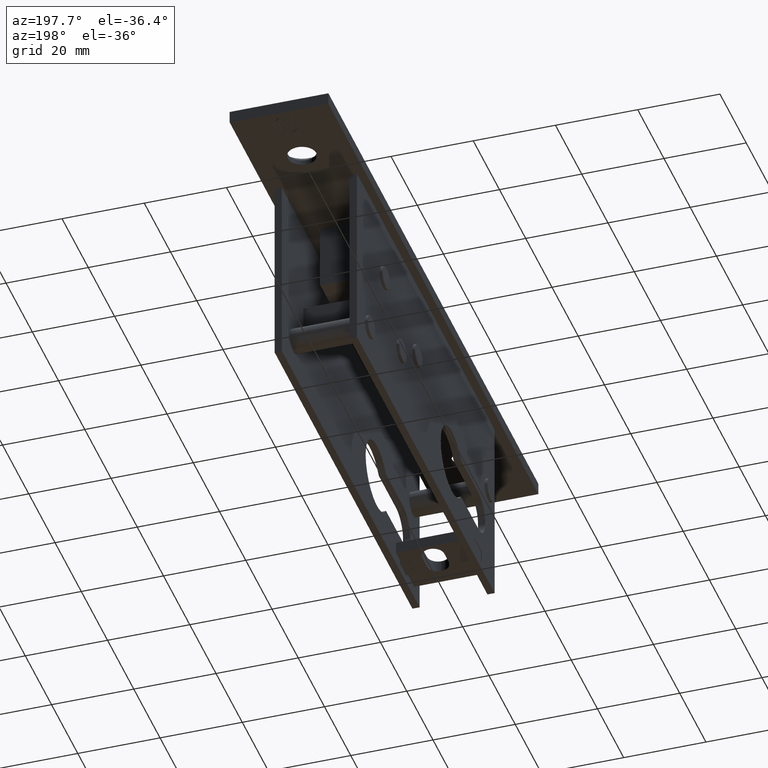
[diagram: clean part render]
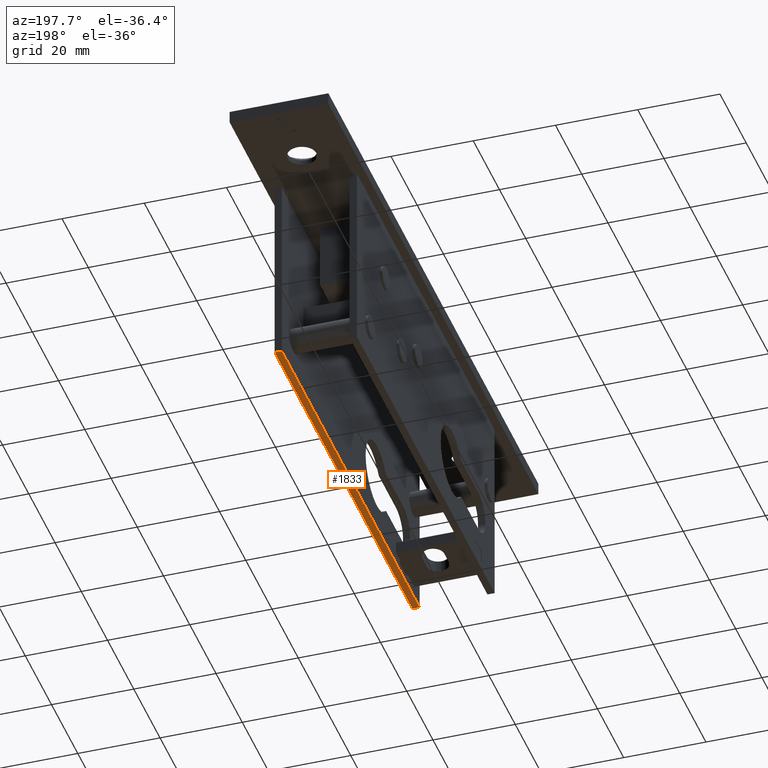
[diagram: same view with one face highlighted and labeled with its STEP entity id]
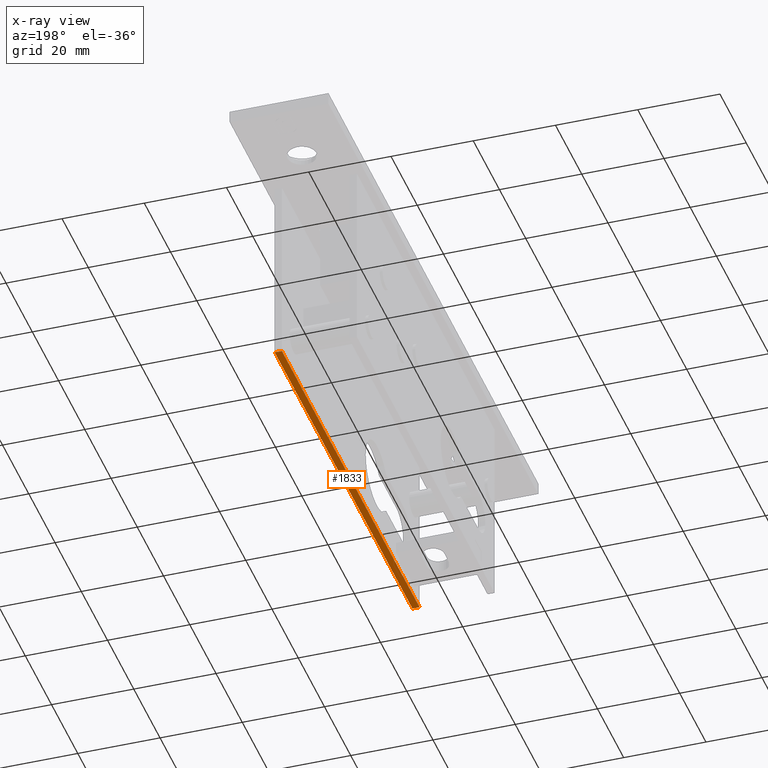
[diagram: x-ray of the same camera — body ghosted, the highlighted face saturated]
A machine part, auxiliary view. The second image highlights one B-rep face of the part: STEP entity #1833.
The next image is the same camera in x-ray: the body ghosted, the highlighted face saturated — about 0% of this face is hidden behind the body in this view.
In plain terms, the highlighted planar face has unit normal (0, 0, 1).
Its self-contained STEP definition (entity closure, byte-faithful):
#289 = DIRECTION ( 'NONE',  ( 1.000000000000000000, 0.000000000000000000, 0.000000000000000000 ) ) ;
#976 = VECTOR ( 'NONE', #6719, 1000.000000000000000 ) ;
#1080 = DIRECTION ( 'NONE',  ( -1.000000000000000000, -0.000000000000000000, -0.000000000000000000 ) ) ;
#1384 = EDGE_LOOP ( 'NONE', ( #5247, #5227, #15013, #11022 ) ) ;
#1833 = ADVANCED_FACE ( 'NONE', ( #4316 ), #15178, .F. ) ;
#2633 = CARTESIAN_POINT ( 'NONE',  ( 8.250000000000007105, 51.99999999999999289, -47.00000000000000000 ) ) ;
#2903 = EDGE_CURVE ( 'NONE', #12475, #9041, #13233, .T. ) ;
#2931 = DIRECTION ( 'NONE',  ( 0.000000000000000000, 0.000000000000000000, 1.000000000000000000 ) ) ;
#3255 = EDGE_CURVE ( 'NONE', #9041, #8431, #15989, .T. ) ;
#3765 = CARTESIAN_POINT ( 'NONE',  ( 9.999999999999994671, -53.00000000000000711, -47.00000000000000000 ) ) ;
#4283 = EDGE_CURVE ( 'NONE', #8431, #4885, #4388, .T. ) ;
#4316 = FACE_OUTER_BOUND ( 'NONE', #1384, .T. ) ;
#4388 = LINE ( 'NONE', #12073, #976 ) ;
#4885 = VERTEX_POINT ( 'NONE', #3765 ) ;
#5227 = ORIENTED_EDGE ( 'NONE', *, *, #12201, .T. ) ;
#5247 = ORIENTED_EDGE ( 'NONE', *, *, #4283, .T. ) ;
#6131 = CARTESIAN_POINT ( 'NONE',  ( 10.00000000000000533, 51.99999999999999289, -47.00000000000000000 ) ) ;
#6648 = DIRECTION ( 'NONE',  ( 1.156482317317871478E-16, 1.000000000000000000, 0.000000000000000000 ) ) ;
#6719 = DIRECTION ( 'NONE',  ( -9.912705577010325549E-17, -1.000000000000000000, -0.000000000000000000 ) ) ;
#8431 = VERTEX_POINT ( 'NONE', #6131 ) ;
#8968 = VECTOR ( 'NONE', #1080, 1000.000000000000000 ) ;
#9029 = CARTESIAN_POINT ( 'NONE',  ( 8.249999999999994671, -53.00000000000000711, -47.00000000000000000 ) ) ;
#9041 = VERTEX_POINT ( 'NONE', #2633 ) ;
#10016 = AXIS2_PLACEMENT_3D ( 'NONE', #12372, #2931, #11123 ) ;
#11022 = ORIENTED_EDGE ( 'NONE', *, *, #3255, .T. ) ;
#11123 = DIRECTION ( 'NONE',  ( 1.000000000000000000, 0.000000000000000000, -0.000000000000000000 ) ) ;
#11316 = VECTOR ( 'NONE', #289, 1000.000000000000000 ) ;
#11935 = VECTOR ( 'NONE', #6648, 1000.000000000000000 ) ;
#12073 = CARTESIAN_POINT ( 'NONE',  ( 10.00000000000000533, 51.99999999999999289, -47.00000000000000000 ) ) ;
#12201 = EDGE_CURVE ( 'NONE', #4885, #12475, #16180, .T. ) ;
#12372 = CARTESIAN_POINT ( 'NONE',  ( 0.000000000000000000, 0.000000000000000000, -47.00000000000000000 ) ) ;
#12475 = VERTEX_POINT ( 'NONE', #9029 ) ;
#13233 = LINE ( 'NONE', #13325, #11935 ) ;
#13325 = CARTESIAN_POINT ( 'NONE',  ( 8.250000000000007105, 51.99999999999999289, -47.00000000000000000 ) ) ;
#13947 = CARTESIAN_POINT ( 'NONE',  ( 8.250000000000007105, 51.99999999999999289, -47.00000000000000000 ) ) ;
#15013 = ORIENTED_EDGE ( 'NONE', *, *, #2903, .T. ) ;
#15178 = PLANE ( 'NONE',  #10016 ) ;
#15989 = LINE ( 'NONE', #13947, #11316 ) ;
#16180 = LINE ( 'NONE', #17361, #8968 ) ;
#17361 = CARTESIAN_POINT ( 'NONE',  ( 8.249999999999994671, -53.00000000000000711, -47.00000000000000000 ) ) ;